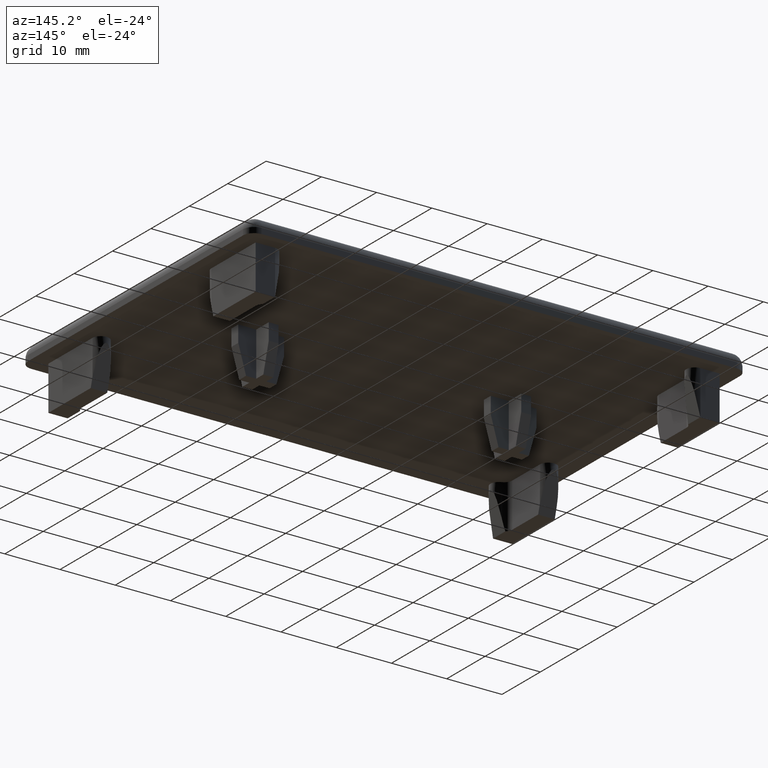
[diagram: clean part render]
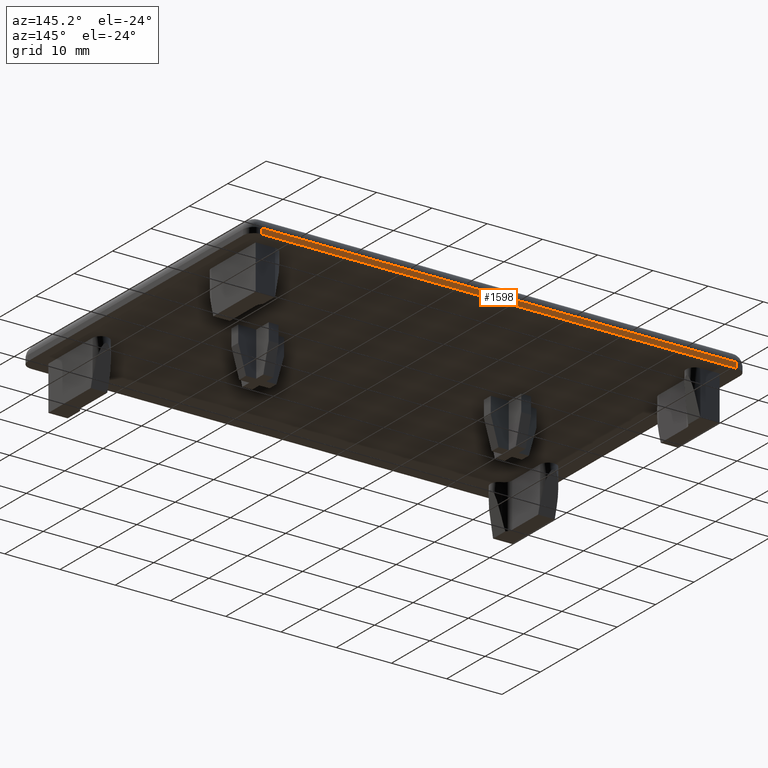
[diagram: same view with one face highlighted and labeled with its STEP entity id]
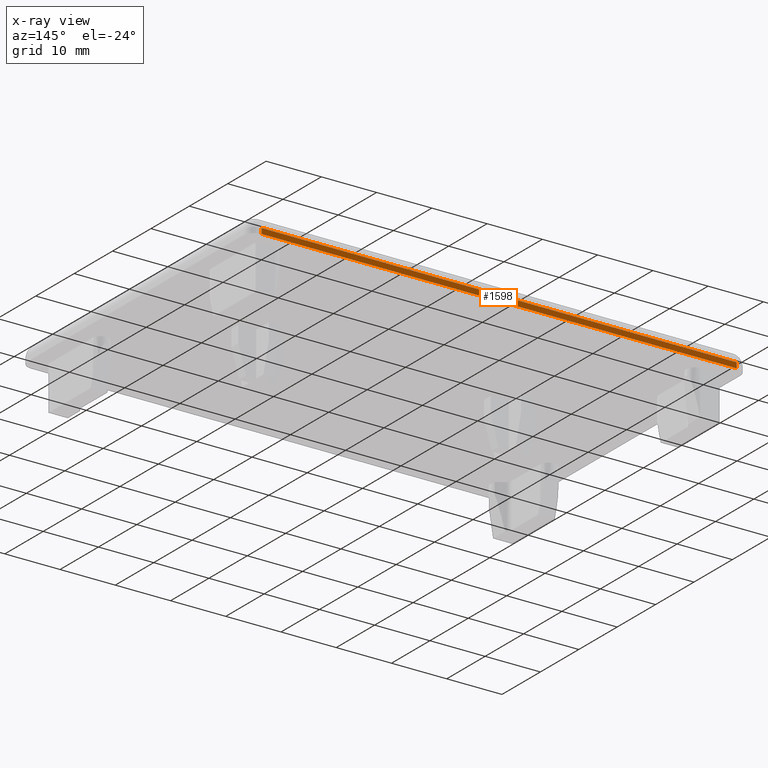
[diagram: x-ray of the same camera — body ghosted, the highlighted face saturated]
A machine part, auxiliary view. The second image highlights one B-rep face of the part: STEP entity #1598.
The next image is the same camera in x-ray: the body ghosted, the highlighted face saturated — about 0% of this face is hidden behind the body in this view.
In plain terms, the highlighted planar face has unit normal (-0, 1, 0).
Its self-contained STEP definition (entity closure, byte-faithful):
#164=FACE_OUTER_BOUND('',#258,.T.);
#258=EDGE_LOOP('',(#1443,#1444,#1445,#1446));
#431=LINE('',#2573,#611);
#434=LINE('',#2587,#614);
#446=LINE('',#2625,#626);
#450=LINE('',#2632,#630);
#611=VECTOR('',#2103,1.);
#614=VECTOR('',#2118,1.);
#626=VECTOR('',#2162,86.);
#630=VECTOR('',#2172,86.);
#757=VERTEX_POINT('',#2566);
#759=VERTEX_POINT('',#2571);
#760=VERTEX_POINT('',#2576);
#763=VERTEX_POINT('',#2583);
#967=EDGE_CURVE('',#759,#757,#431,.T.);
#974=EDGE_CURVE('',#760,#763,#434,.T.);
#994=EDGE_CURVE('',#757,#760,#446,.T.);
#998=EDGE_CURVE('',#763,#759,#450,.T.);
#1443=ORIENTED_EDGE('',*,*,#967,.F.);
#1444=ORIENTED_EDGE('',*,*,#998,.F.);
#1445=ORIENTED_EDGE('',*,*,#974,.F.);
#1446=ORIENTED_EDGE('',*,*,#994,.F.);
#1510=PLANE('',#1732);
#1598=ADVANCED_FACE('',(#164),#1510,.T.);
#1732=AXIS2_PLACEMENT_3D('',#2635,#2177,#2178);
#2103=DIRECTION('',(0.,0.,1.));
#2118=DIRECTION('',(0.,0.,-1.));
#2162=DIRECTION('',(-1.,-1.97372982155583E-16,0.));
#2172=DIRECTION('',(1.,1.97372982155583E-16,0.));
#2177=DIRECTION('center_axis',(-1.97372982155583E-16,1.,0.));
#2178=DIRECTION('ref_axis',(-1.,-3.5527136788005E-16,0.));
#2566=CARTESIAN_POINT('',(43.,30.,1.));
#2571=CARTESIAN_POINT('',(43.,30.,0.));
#2573=CARTESIAN_POINT('',(43.,30.,0.));
#2576=CARTESIAN_POINT('',(-43.,30.,1.));
#2583=CARTESIAN_POINT('',(-43.,30.,0.));
#2587=CARTESIAN_POINT('',(-43.,30.,0.));
#2625=CARTESIAN_POINT('',(22.5,30.,1.));
#2632=CARTESIAN_POINT('',(-45.,30.,0.));
#2635=CARTESIAN_POINT('Origin',(45.,30.,0.));